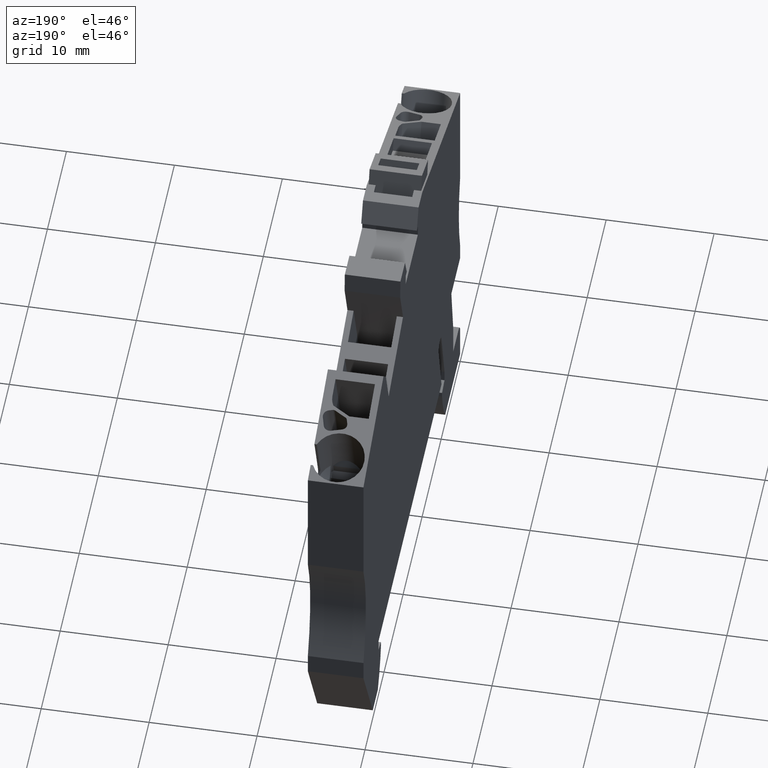
[diagram: clean part render]
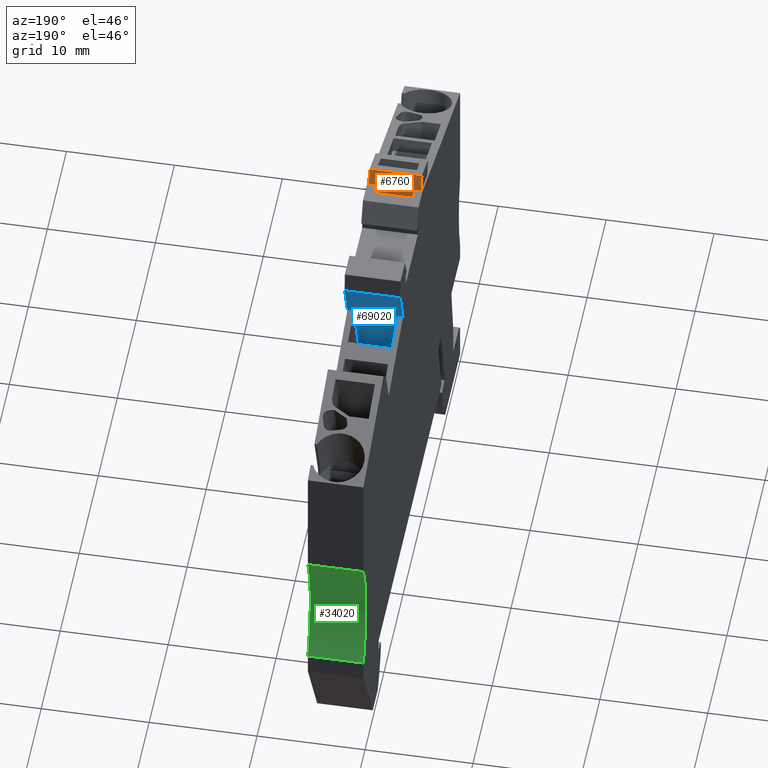
[diagram: same view with three faces highlighted in distinct colors, each labeled with its STEP entity id]
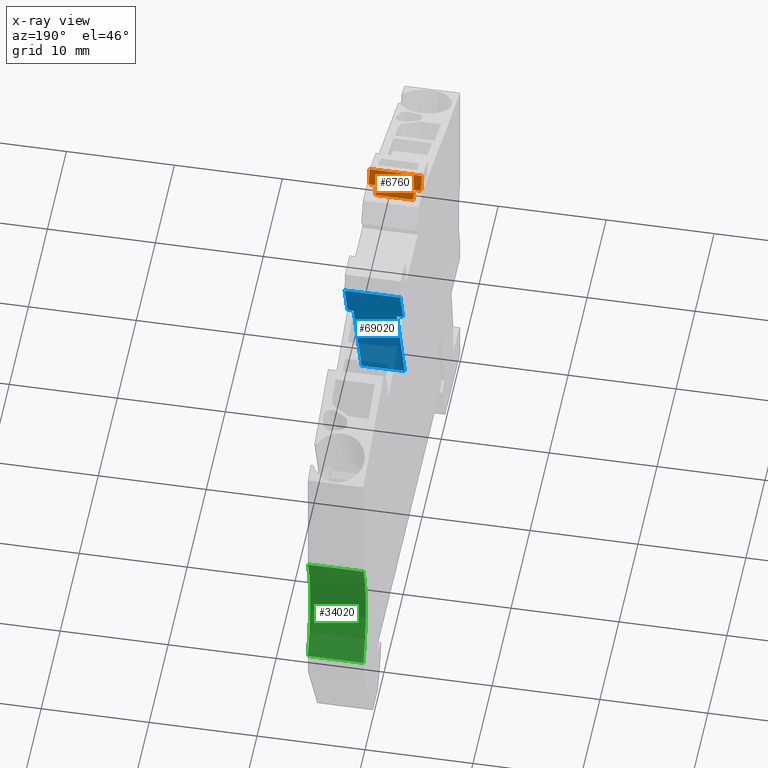
[diagram: x-ray of the same camera — body ghosted, the three highlighted faces saturated]
A machine part, auxiliary view with three faces highlighted in distinct colors.
The next image is the same camera in x-ray (body ghosted, the three faces saturated) — at least one of them is partly hidden behind the body in this view.
Their STEP definitions:

[orange] entity #6760 — the highlighted planar face has unit normal (0, 0.9659, 0.2588).
#4830=CARTESIAN_POINT('',(-23.668432567387,36.9655921904849,0.));
#4840=DIRECTION('',(-6.60578989969282E-14,-2.40431089730451E-14,1.));
#4850=VECTOR('',#4840,1.);
#4860=LINE('',#4830,#4850);
#4870=CARTESIAN_POINT('',(-23.6684325673867,36.965592190485,
-5.00000000000004));
#4880=VERTEX_POINT('',#4870);
#4890=CARTESIAN_POINT('',(-23.668432567387,36.9655921904849,
-0.150000000000036));
#4900=VERTEX_POINT('',#4890);
#4910=EDGE_CURVE('',#4880,#4900,#4860,.T.);
#5300=CARTESIAN_POINT('',(-13.9949707040473,0.863741031422805,
-4.35000000002788));
#5310=DIRECTION('',(0.258819045102525,-0.965925826289067,0.));
#5320=VECTOR('',#5310,1.);
#5330=LINE('',#5300,#5320);
#5340=CARTESIAN_POINT('',(-23.2527402604936,35.4142073808439,
-4.35000000002788));
#5350=VERTEX_POINT('',#5340);
#5360=CARTESIAN_POINT('',(-22.978749406983,34.3916595947331,
-4.35000000002788));
#5370=VERTEX_POINT('',#5360);
#5380=EDGE_CURVE('',#5350,#5370,#5330,.T.);
#6270=CARTESIAN_POINT('',(-23.164340433549,35.0842947353066,
-5.15000000011959));
#6280=DIRECTION('',(0.965925826289074,0.258819045102499,
7.0029845177227E-14));
#6290=DIRECTION('',(-0.258819045102499,0.965925826289074,
5.81755603747466E-13));
#6300=AXIS2_PLACEMENT_3D('',#6270,#6280,#6290);
#6310=PLANE('',#6300);
#6320=ORIENTED_EDGE('',*,*,#5380,.F.);
#6330=CARTESIAN_POINT('',(-22.9787494069826,34.3916595947306,
-3.35829142272814E-11));
#6340=DIRECTION('',(-8.29257937772377E-14,5.80057819905516E-13,-1.));
#6350=VECTOR('',#6340,1.);
#6360=LINE('',#6330,#6350);
#6370=CARTESIAN_POINT('',(-22.9787494069827,34.3916595947311,
-0.800000000027895));
#6380=VERTEX_POINT('',#6370);
#6390=EDGE_CURVE('',#6380,#5370,#6360,.T.);
#6400=ORIENTED_EDGE('',*,*,#6390,.T.);
#6410=CARTESIAN_POINT('',(-13.9949707040476,0.863741031422748,
-0.800000000027895));
#6420=DIRECTION('',(-0.258819045102525,0.965925826289067,0.));
#6430=VECTOR('',#6420,1.);
#6440=LINE('',#6410,#6430);
#6450=CARTESIAN_POINT('',(-23.2527402604933,35.4142073808419,
-0.800000000027895));
#6460=VERTEX_POINT('',#6450);
#6470=EDGE_CURVE('',#6380,#6460,#6440,.T.);
#6480=ORIENTED_EDGE('',*,*,#6470,.F.);
#6490=CARTESIAN_POINT('',(-23.2527402604932,35.4142073808414,
-3.35829142272814E-11));
#6500=DIRECTION('',(8.29257937772377E-14,-5.80057819905516E-13,1.));
#6510=VECTOR('',#6500,1.);
#6520=LINE('',#6490,#6510);
#6530=CARTESIAN_POINT('',(-23.2527402604932,35.4142073808415,
-0.150000000000036));
#6540=VERTEX_POINT('',#6530);
#6550=EDGE_CURVE('',#6460,#6540,#6520,.T.);
#6560=ORIENTED_EDGE('',*,*,#6550,.F.);
#6570=CARTESIAN_POINT('',(-13.7635319922093,0.,-0.150000000000036));
#6580=DIRECTION('',(-0.258819045102499,0.965925826289074,0.));
#6590=VECTOR('',#6580,1.);
#6600=LINE('',#6570,#6590);
#6610=EDGE_CURVE('',#6540,#4900,#6600,.T.);
#6620=ORIENTED_EDGE('',*,*,#6610,.F.);
#6630=ORIENTED_EDGE('',*,*,#4910,.T.);
#6640=CARTESIAN_POINT('',(-13.7635319922089,0.,-5.00000000000004));
#6650=DIRECTION('',(-0.258819045102499,0.965925826289074,0.));
#6660=VECTOR('',#6650,1.);
#6670=LINE('',#6640,#6660);
#6680=CARTESIAN_POINT('',(-23.2527402604936,35.4142073808443,
-5.00000000000004));
#6690=VERTEX_POINT('',#6680);
#6700=EDGE_CURVE('',#6690,#4880,#6670,.T.);
#6710=ORIENTED_EDGE('',*,*,#6700,.T.);
#6720=EDGE_CURVE('',#6690,#5350,#6520,.T.);
#6730=ORIENTED_EDGE('',*,*,#6720,.F.);
#6740=EDGE_LOOP('',(#6730,#6710,#6630,#6620,#6560,#6480,#6400,#6320));
#6750=FACE_OUTER_BOUND('',#6740,.T.);
#6760=ADVANCED_FACE('',(#6750),#6310,.T.);

[blue] entity #69020 — the highlighted planar face has unit normal (-0, -0.9397, 0.342).
#34210=CARTESIAN_POINT('',(-12.8857535311788,29.4435185980595,
-0.575000000002682));
#34220=VERTEX_POINT('',#34210);
#34250=CARTESIAN_POINT('',(-12.8857535311788,29.4435185980595,
-0.575000000002682));
#34260=DIRECTION('',(-0.342020143325669,-0.939692620785908,
3.34773204791426E-18));
#34270=VECTOR('',#34260,1.);
#34280=LINE('',#34250,#34270);
#34290=CARTESIAN_POINT('',(-17.058399279752,17.9792686244714,
-0.575000000002682));
#34300=VERTEX_POINT('',#34290);
#34310=EDGE_CURVE('',#34220,#34300,#34280,.T.);
#53580=CARTESIAN_POINT('',(-11.4150669149199,33.484196867286,
-1.21488044457915E-10));
#53590=VERTEX_POINT('',#53580);
#53620=CARTESIAN_POINT('',(-23.6023178930393,0.,0.));
#53630=DIRECTION('',(0.342020143328586,0.939692620784847,0.));
#53640=VECTOR('',#53630,1.);
#53650=LINE('',#53620,#53640);
#53660=CARTESIAN_POINT('',(-12.8857535311788,29.4435185980595,
-1.23710362601836E-10));
#53670=VERTEX_POINT('',#53660);
#53680=EDGE_CURVE('',#53670,#53590,#53650,.T.);
#58560=CARTESIAN_POINT('',(-17.058399279752,17.9792686244714,
-4.57500000000268));
#58570=DIRECTION('',(-3.02433332083908E-15,1.10432988931848E-15,1.));
#58580=VECTOR('',#58570,1.);
#58590=LINE('',#58560,#58580);
#58600=CARTESIAN_POINT('',(-17.058399279752,17.9792686244714,
-4.57500000000268));
#58610=VERTEX_POINT('',#58600);
#58620=EDGE_CURVE('',#58610,#34300,#58590,.T.);
#59580=CARTESIAN_POINT('',(-12.8857535311788,29.4435185980595,
-4.57500000000268));
#59590=VERTEX_POINT('',#59580);
#59640=CARTESIAN_POINT('',(-12.8857535311788,29.4435185980595,
-4.57500000000268));
#59650=DIRECTION('',(-0.342020143325669,-0.939692620785908,
3.34773204791426E-18));
#59660=VECTOR('',#59650,1.);
#59670=LINE('',#59640,#59660);
#59680=EDGE_CURVE('',#59590,#58610,#59670,.T.);
#60870=CARTESIAN_POINT('',(-12.8857535311788,29.4435185980595,
-5.15000000000269));
#60880=VERTEX_POINT('',#60870);
#60910=CARTESIAN_POINT('',(-23.6023178930393,0.,-5.15000000000272));
#60920=DIRECTION('',(0.342020143328586,0.939692620784847,0.));
#60930=VECTOR('',#60920,1.);
#60940=LINE('',#60910,#60930);
#60950=CARTESIAN_POINT('',(-11.4150669149199,33.484196867286,
-5.15000000000269));
#60960=VERTEX_POINT('',#60950);
#60970=EDGE_CURVE('',#60880,#60960,#60940,.T.);
#64250=CARTESIAN_POINT('',(-12.8857535311788,29.4435185980595,0.));
#64260=DIRECTION('',(0.,0.,-1.));
#64270=VECTOR('',#64260,1.);
#64280=LINE('',#64250,#64270);
#64290=EDGE_CURVE('',#53670,#34220,#64280,.T.);
#64340=EDGE_CURVE('',#59590,#60880,#64280,.T.);
#68820=CARTESIAN_POINT('',(-16.5633688818003,19.3393534648847,
1.4210854715202E-14));
#68830=DIRECTION('',(-0.939692620784847,0.342020143328586,0.));
#68840=DIRECTION('',(0.342020143328586,0.939692620784847,0.));
#68850=AXIS2_PLACEMENT_3D('',#68820,#68830,#68840);
#68860=PLANE('',#68850);
#68870=ORIENTED_EDGE('',*,*,#60970,.T.);
#68880=ORIENTED_EDGE('',*,*,#64340,.T.);
#68890=ORIENTED_EDGE('',*,*,#59680,.F.);
#68900=ORIENTED_EDGE('',*,*,#58620,.F.);
#68910=ORIENTED_EDGE('',*,*,#34310,.T.);
#68920=ORIENTED_EDGE('',*,*,#64290,.T.);
#68930=ORIENTED_EDGE('',*,*,#53680,.F.);
#68940=CARTESIAN_POINT('',(-11.4150669149199,33.484196867286,0.));
#68950=DIRECTION('',(0.,0.,1.));
#68960=VECTOR('',#68950,1.);
#68970=LINE('',#68940,#68960);
#68980=EDGE_CURVE('',#60960,#53590,#68970,.T.);
#68990=ORIENTED_EDGE('',*,*,#68980,.T.);
#69000=EDGE_LOOP('',(#68990,#68930,#68920,#68910,#68900,#68890,#68880,
#68870));
#69010=FACE_OUTER_BOUND('',#69000,.T.);
#69020=ADVANCED_FACE('',(#69010),#68860,.F.);

[green] entity #34020 — the highlighted cylindrical surface (partial cylindrical patch) has radius 15 mm, axis along (1, -0, 0).
#33610=CARTESIAN_POINT('',(21.6477270848666,11.1999999999987,
3.5527136788005E-15));
#33620=DIRECTION('',(0.,0.,1.));
#33630=DIRECTION('',(1.,0.,0.));
#33640=AXIS2_PLACEMENT_3D('',#33610,#33620,#33630);
#33650=CYLINDRICAL_SURFACE('',#33640,15.);
#33660=CARTESIAN_POINT('',(7.89999999999907,17.1999999999987,
3.5527136788005E-15));
#33670=DIRECTION('',(0.,0.,1.));
#33680=VECTOR('',#33670,1.);
#33690=LINE('',#33660,#33680);
#33700=CARTESIAN_POINT('',(7.89999999999907,17.1999999999987,
-5.15000000000269));
#33710=VERTEX_POINT('',#33700);
#33720=CARTESIAN_POINT('',(7.89999999999907,17.1999999999987,
-1.32535486170673E-10));
#33730=VERTEX_POINT('',#33720);
#33740=EDGE_CURVE('',#33710,#33730,#33690,.T.);
#33750=ORIENTED_EDGE('',*,*,#33740,.T.);
#33760=CARTESIAN_POINT('',(21.6477270848666,11.1999999999987,
-5.15000000000272));
#33770=DIRECTION('',(0.,0.,1.));
#33780=DIRECTION('',(1.,0.,0.));
#33790=AXIS2_PLACEMENT_3D('',#33760,#33770,#33780);
#33800=CIRCLE('',#33790,15.);
#33810=CARTESIAN_POINT('',(7.89999999999906,5.19999999999878,
-5.15000000000269));
#33820=VERTEX_POINT('',#33810);
#33830=EDGE_CURVE('',#33710,#33820,#33800,.T.);
#33840=ORIENTED_EDGE('',*,*,#33830,.F.);
#33850=CARTESIAN_POINT('',(7.89999999999907,5.19999999999874,
3.5527136788005E-15));
#33860=DIRECTION('',(0.,0.,1.));
#33870=VECTOR('',#33860,1.);
#33880=LINE('',#33850,#33870);
#33890=CARTESIAN_POINT('',(7.89999999999906,5.19999999999878,
-1.37155874271251E-10));
#33900=VERTEX_POINT('',#33890);
#33910=EDGE_CURVE('',#33820,#33900,#33880,.T.);
#33920=ORIENTED_EDGE('',*,*,#33910,.F.);
#33930=CARTESIAN_POINT('',(21.6477270848666,11.1999999999987,0.));
#33940=DIRECTION('',(0.,0.,1.));
#33950=DIRECTION('',(1.,0.,0.));
#33960=AXIS2_PLACEMENT_3D('',#33930,#33940,#33950);
#33970=CIRCLE('',#33960,15.);
#33980=EDGE_CURVE('',#33730,#33900,#33970,.T.);
#33990=ORIENTED_EDGE('',*,*,#33980,.T.);
#34000=EDGE_LOOP('',(#33990,#33920,#33840,#33750));
#34010=FACE_OUTER_BOUND('',#34000,.T.);
#34020=ADVANCED_FACE('',(#34010),#33650,.F.);